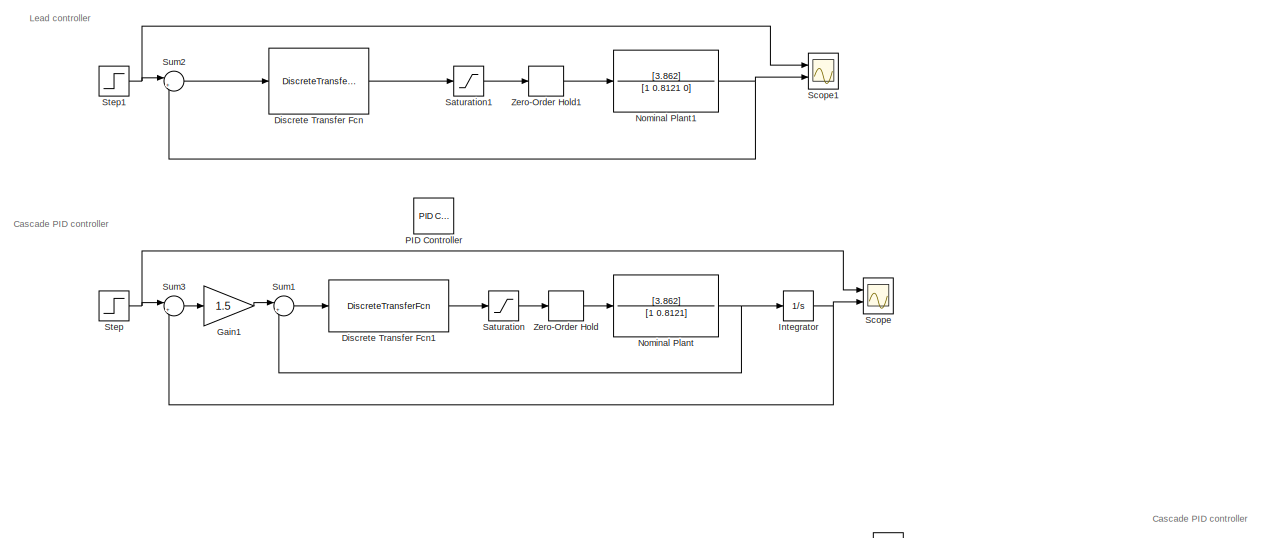
[diagram: root canvas - part 1/3, top left region]
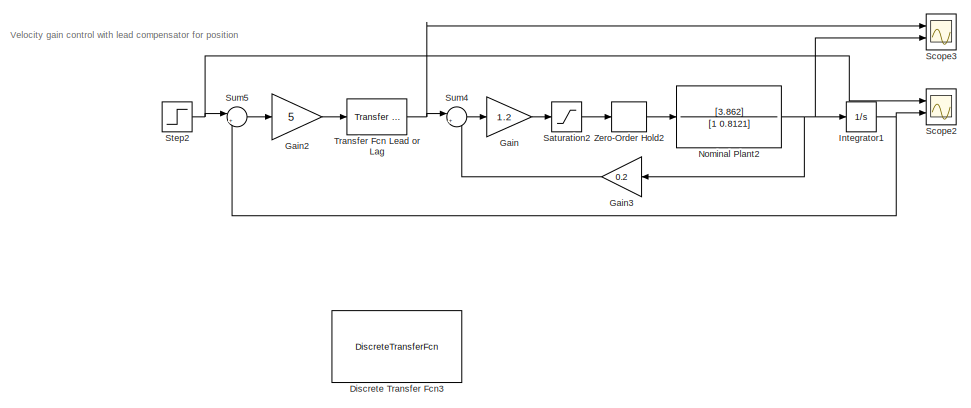
[diagram: root canvas - part 2/3, bottom left region]
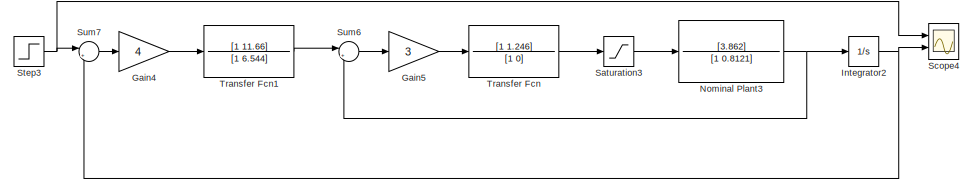
[diagram: root canvas - part 3/3, bottom right region]
MODEL slx_7efecade0dee
KIND model
CONFIG AbsTol = auto
CONFIG EnableMultiTasking = off
CONFIG FixedStep = auto
CONFIG MaxStep = auto
CONFIG MinStep = auto
CONFIG RelTol = 1e-3
CONFIG SampleTimeConstraint = Unconstrained
CONFIG SolverName = VariableStepAuto
CONFIG StartTime = 0.0
CONFIG StopTime = 6
BLOCK [DiscreteTransferFcn] Discrete Transfer Fcn
  Denominator = [1 -0.7738]
  InputPortMap = u0
  Numerator = [3.805 -3.665]
  Ports = [1, 1]
BLOCK [DiscreteTransferFcn] Discrete Transfer Fcn1
  Denominator = [1 -1]
  InputPortMap = u0
  Numerator = [2.002 -1.438]
  Ports = [1, 1]
  SampleTime = 0.05
BLOCK [DiscreteTransferFcn] Discrete Transfer Fcn3
  Denominator = [1 -0.2716]
  InputPortMap = u0
  Numerator = [15.766 -10.473]
  Ports = [1, 1]
BLOCK [Gain] Gain
  Gain = 1.2
BLOCK [Gain] Gain1
  Gain = 1.5
BLOCK [Gain] Gain2
  Gain = 5
BLOCK [Gain] Gain3
  Gain = 0.2
BLOCK [Gain] Gain4
  Gain = 4
BLOCK [Gain] Gain5
  Gain = 3
BLOCK [Integrator] Integrator
  Ports = [1, 1]
BLOCK [Integrator] Integrator1
  Ports = [1, 1]
BLOCK [Integrator] Integrator2
  Ports = [1, 1]
BLOCK [TransferFcn] Nominal Plant
  Denominator = [1 0.8121]
  Numerator = [3.862]
BLOCK [TransferFcn] Nominal Plant1
  Denominator = [1 0.8121 0]
  Numerator = [3.862]
BLOCK [TransferFcn] Nominal Plant2
  Denominator = [1 0.8121]
  Numerator = [3.862]
BLOCK [TransferFcn] Nominal Plant3
  Denominator = [1 0.8121]
  Numerator = [3.862]
BLOCK [Reference] PID Controller  REF=slpidlib/PID Controller
  Ports = [1, 1]
  SourceBlock = slpidlib/PID Controller
  SourceProductBaseCode = SL
  SourceType = PID 1dof
BLOCK [Saturate] Saturation
  LowerLimit = -10
  UpperLimit = +10
BLOCK [Saturate] Saturation1
  LowerLimit = -10
  UpperLimit = +10
BLOCK [Saturate] Saturation2
  LowerLimit = -10
  UpperLimit = +10
BLOCK [Saturate] Saturation3
  LowerLimit = -10
  UpperLimit = +10
BLOCK [Scope] Scope
  Floating = off
  NumInputPorts = 2
  Ports = [2]
  ScopeSpecificationString = Simulink.scopes.TimeScopeBlockCfg('CurrentConfiguration', extmgr.ConfigurationSet(extmgr.Configuration('Core','General UI',true),extmgr.Configuration('Core','Source UI',true),extmgr.Configuration('Sources','WiredSimulink',true),extmgr.Configuration('Visuals','Time Domain',true,'SerializedDisplays',{struct('MinYLimReal','-0.625','MaxYLimReal','5.625','YLabelReal','','MinYLimMag','0.00000','MaxYLimM...<+1382ch>
BLOCK [Scope] Scope1
  Floating = off
  NumInputPorts = 2
  Ports = [2]
  ScopeSpecificationString = Simulink.scopes.TimeScopeBlockCfg('CurrentConfiguration', extmgr.ConfigurationSet(extmgr.Configuration('Core','General UI',true),extmgr.Configuration('Core','Source UI',true),extmgr.Configuration('Sources','WiredSimulink',true,'DataLoggingVariableName','ScopeData1'),extmgr.Configuration('Visuals','Time Domain',true,'SerializedDisplays',{struct('MinYLimReal','-0.77183','MaxYLimReal','6.94644','YLab...<+1437ch>
BLOCK [Scope] Scope2
  Floating = off
  NumInputPorts = 2
  Ports = [2]
  ScopeSpecificationString = Simulink.scopes.TimeScopeBlockCfg('CurrentConfiguration', extmgr.ConfigurationSet(extmgr.Configuration('Core','General UI',true),extmgr.Configuration('Core','Source UI',true),extmgr.Configuration('Sources','WiredSimulink',true,'DataLoggingVariableName','ScopeData2'),extmgr.Configuration('Visuals','Time Domain',true,'SerializedDisplays',{struct('MinYLimReal','-0.9288','MaxYLimReal','8.35922','YLabe...<+1432ch>
BLOCK [Scope] Scope3
  Floating = off
  NumInputPorts = 2
  Ports = [2]
  ScopeSpecificationString = Simulink.scopes.TimeScopeBlockCfg('CurrentConfiguration', extmgr.ConfigurationSet(extmgr.Configuration('Core','General UI',true),extmgr.Configuration('Core','Source UI',true),extmgr.Configuration('Sources','WiredSimulink',true,'DataLoggingVariableName','ScopeData3'),extmgr.Configuration('Visuals','Time Domain',true,'SerializedDisplays',{struct('MinYLimReal','-9.93883','MaxYLimReal','28.88209','YLa...<+1459ch>
BLOCK [Scope] Scope4
  Floating = off
  NumInputPorts = 2
  Ports = [2]
  ScopeSpecificationString = Simulink.scopes.TimeScopeBlockCfg('CurrentConfiguration', extmgr.ConfigurationSet(extmgr.Configuration('Core','General UI',true),extmgr.Configuration('Core','Source UI',true),extmgr.Configuration('Sources','WiredSimulink',true,'DataLoggingVariableName','ScopeData4'),extmgr.Configuration('Visuals','Time Domain',true,'SerializedDisplays',{struct('MinYLimReal','-0.96446','MaxYLimReal','8.68015','YLab...<+1434ch>
BLOCK [Step] Step
  After = 5
  SampleTime = 0
BLOCK [Step] Step1
  After = 5
  SampleTime = 0
BLOCK [Step] Step2
  After = 5
  SampleTime = 0
BLOCK [Step] Step3
  After = 5
  SampleTime = 0
BLOCK [Sum] Sum1
  Inputs = |+-
  Ports = [2, 1]
BLOCK [Sum] Sum2
  Inputs = |+-
  Ports = [2, 1]
BLOCK [Sum] Sum3
  Inputs = |+-
  Ports = [2, 1]
BLOCK [Sum] Sum4
  Inputs = |+-
  Ports = [2, 1]
BLOCK [Sum] Sum5
  Inputs = |+-
  Ports = [2, 1]
BLOCK [Sum] Sum6
  Inputs = |+-
  Ports = [2, 1]
BLOCK [Sum] Sum7
  Inputs = |+-
  Ports = [2, 1]
BLOCK [TransferFcn] Transfer Fcn
  Denominator = [1 0]
  Numerator = [1 1.246]
BLOCK [Reference] Transfer Fcn Lead or Lag  REF=simulink/Discrete/Transfer Fcn
Lead or Lag
  Ports = [1, 1]
  SourceBlock = simulink/Discrete/Transfer Fcn\nLead or Lag
  SourceProductBaseCode = SL
  SourceType = Lead or Lag Compensator
BLOCK [TransferFcn] Transfer Fcn1
  Denominator = [1 6.544]
  Numerator = [1 11.66]
BLOCK [ZeroOrderHold] Zero-Order Hold
  SampleTime = 0.05
BLOCK [ZeroOrderHold] Zero-Order Hold1
  SampleTime = 0.02
BLOCK [ZeroOrderHold] Zero-Order Hold2
  SampleTime = 0.1
ANNOTATION (root): Cascade PID controller
ANNOTATION (root): Lead controller
ANNOTATION (root): Velocity gain control with lead compensator for position
LINE Discrete Transfer Fcn1:1 -> Saturation:1
LINE Discrete Transfer Fcn:1 -> Saturation1:1
LINE Gain1:1 -> Sum1:1
LINE Gain2:1 -> Transfer Fcn Lead or Lag:1
LINE Gain3:1 -> Sum4:2
LINE Gain4:1 -> Transfer Fcn1:1
LINE Gain5:1 -> Transfer Fcn:1
LINE Gain:1 -> Saturation2:1
NET Integrator1:1 -> Scope2:2, Sum5:2
NET Integrator2:1 -> Scope4:2, Sum7:2
NET Integrator:1 -> Scope:2, Sum3:2
NET Nominal Plant1:1 -> Scope1:2, Sum2:2
NET Nominal Plant2:1 -> Gain3:1, Integrator1:1, Scope3:2
NET Nominal Plant3:1 -> Integrator2:1, Sum6:2
NET Nominal Plant:1 -> Integrator:1, Sum1:2
LINE Saturation1:1 -> Zero-Order Hold1:1
LINE Saturation2:1 -> Zero-Order Hold2:1
LINE Saturation3:1 -> Nominal Plant3:1
LINE Saturation:1 -> Zero-Order Hold:1
NET Step1:1 -> Scope1:1, Sum2:1
NET Step2:1 -> Scope2:1, Sum5:1
NET Step3:1 -> Scope4:1, Sum7:1
NET Step:1 -> Scope:1, Sum3:1
LINE Sum1:1 -> Discrete Transfer Fcn1:1
LINE Sum2:1 -> Discrete Transfer Fcn:1
LINE Sum3:1 -> Gain1:1
LINE Sum4:1 -> Gain:1
LINE Sum5:1 -> Gain2:1
LINE Sum6:1 -> Gain5:1
LINE Sum7:1 -> Gain4:1
NET Transfer Fcn Lead or Lag:1 -> Scope3:1, Sum4:1
LINE Transfer Fcn1:1 -> Sum6:1
LINE Transfer Fcn:1 -> Saturation3:1
LINE Zero-Order Hold1:1 -> Nominal Plant1:1
LINE Zero-Order Hold2:1 -> Nominal Plant2:1
LINE Zero-Order Hold:1 -> Nominal Plant:1
note: NET lines group one-source signal fan-out (src -> all destinations, sorted); 1:1 wires keep LINE
